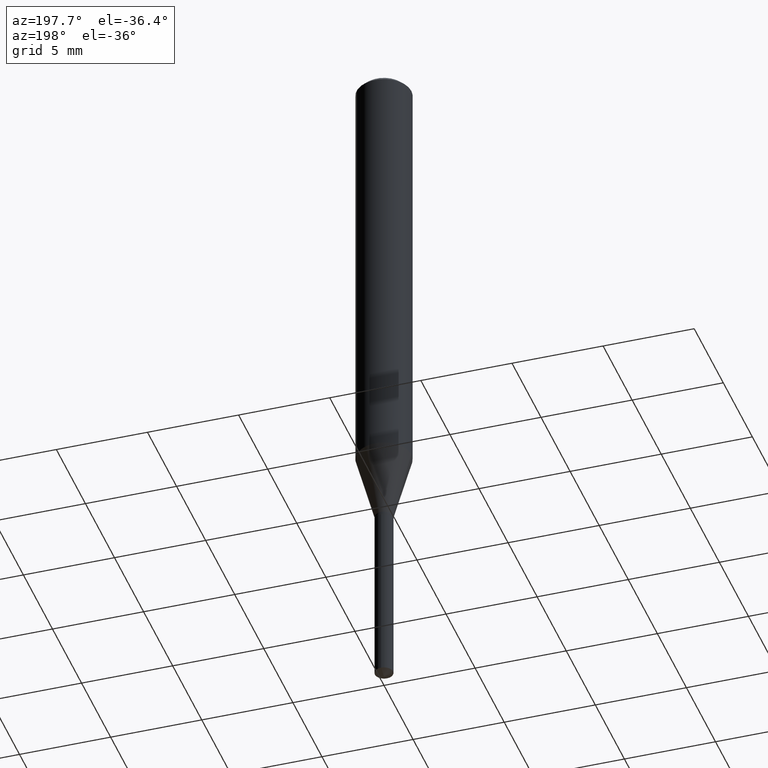
[diagram: clean part render]
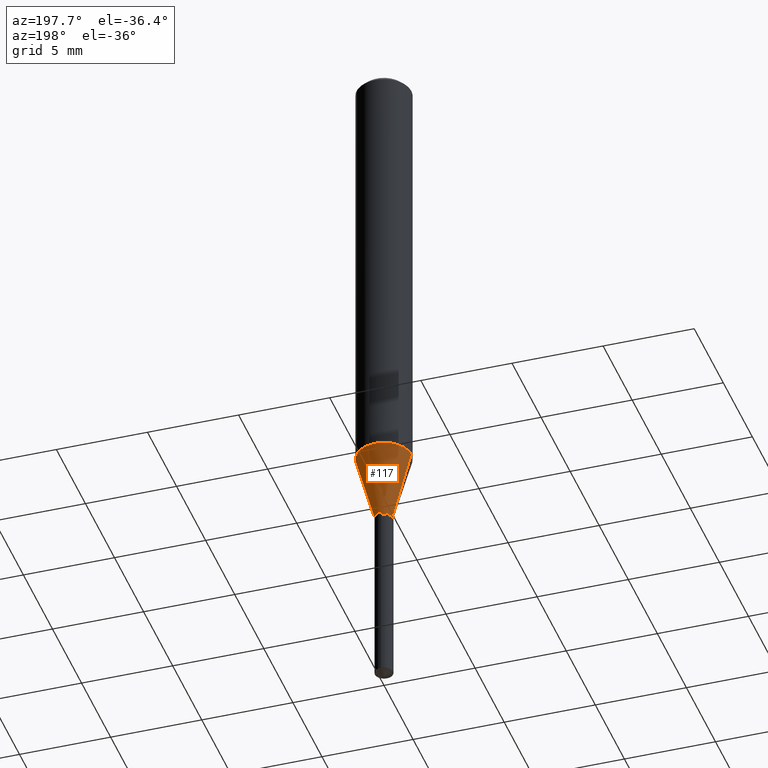
[diagram: same view with one face highlighted and labeled with its STEP entity id]
A machine part, auxiliary view. The second image highlights one B-rep face of the part: STEP entity #117.
In plain terms, the highlighted conical surface has half-angle 15 deg.
Its self-contained STEP definition (entity closure, byte-faithful):
#1 = LINE ( 'NONE', #167, #38 ) ;
#17 = CARTESIAN_POINT ( 'NONE',  ( 2.662137342413139764E-29, -3.800826585464648242E-15, -1.088600000000000012 ) ) ;
#21 = DIRECTION ( 'NONE',  ( -2.445468806185136597E-29, 3.491481338843145583E-15, 1.000000000000000000 ) ) ;
#38 = VECTOR ( 'NONE', #44, 39.37007874015748854 ) ;
#44 = DIRECTION ( 'NONE',  ( 0.2588190451025211281, 1.565188264969622954E-15, 0.9659258262890679791 ) ) ;
#45 = ORIENTED_EDGE ( 'NONE', *, *, #148, .T. ) ;
#51 = VERTEX_POINT ( 'NONE', #345 ) ;
#63 = DIRECTION ( 'NONE',  ( 1.000000000000000000, -6.982962677686258033E-15, 0.000000000000000000 ) ) ;
#77 = ORIENTED_EDGE ( 'NONE', *, *, #207, .T. ) ;
#96 = FACE_OUTER_BOUND ( 'NONE', #258, .T. ) ;
#117 = ADVANCED_FACE ( 'NONE', ( #96 ), #231, .T. ) ;
#148 = EDGE_CURVE ( 'NONE', #301, #51, #259, .T. ) ;
#167 = CARTESIAN_POINT ( 'NONE',  ( 0.01949999999999999997, -3.936994357679530254E-15, -1.088600000000000012 ) ) ;
#197 = CARTESIAN_POINT ( 'NONE',  ( -0.05905000000000010935, -2.865899343576267000E-15, -0.9409973905606506817 ) ) ;
#207 = EDGE_CURVE ( 'NONE', #51, #476, #351, .T. ) ;
#215 = DIRECTION ( 'NONE',  ( -2.445468806185136597E-29, 3.491481338843145583E-15, 1.000000000000000000 ) ) ;
#231 = CONICAL_SURFACE ( 'NONE', #477, 0.01949999999999999997, 0.2617993877991498519 ) ;
#252 = VECTOR ( 'NONE', #424, 39.37007874015748854 ) ;
#258 = EDGE_LOOP ( 'NONE', ( #45, #77, #340, #310 ) ) ;
#259 = CIRCLE ( 'NONE', #362, 0.01949999999999999997 ) ;
#262 = CIRCLE ( 'NONE', #426, 0.05905000000000010935 ) ;
#286 = DIRECTION ( 'NONE',  ( 1.000000000000000000, -6.982962677686258033E-15, 0.000000000000000000 ) ) ;
#292 = CARTESIAN_POINT ( 'NONE',  ( 2.301179765317683209E-29, -3.285474829042607282E-15, -0.9409973905606506817 ) ) ;
#294 = EDGE_CURVE ( 'NONE', #438, #476, #262, .T. ) ;
#301 = VERTEX_POINT ( 'NONE', #401 ) ;
#310 = ORIENTED_EDGE ( 'NONE', *, *, #420, .F. ) ;
#340 = ORIENTED_EDGE ( 'NONE', *, *, #294, .F. ) ;
#345 = CARTESIAN_POINT ( 'NONE',  ( -0.01949999999999999997, -3.671697751606305097E-15, -1.088600000000000012 ) ) ;
#351 = LINE ( 'NONE', #427, #252 ) ;
#362 = AXIS2_PLACEMENT_3D ( 'NONE', #17, #21, #286 ) ;
#393 = CARTESIAN_POINT ( 'NONE',  ( 2.662137342413139764E-29, -3.800826585464648242E-15, -1.088600000000000012 ) ) ;
#398 = DIRECTION ( 'NONE',  ( 1.000000000000000000, -6.982962677686267499E-15, 0.000000000000000000 ) ) ;
#401 = CARTESIAN_POINT ( 'NONE',  ( 0.01949999999999999997, -3.936994357679530254E-15, -1.088600000000000012 ) ) ;
#420 = EDGE_CURVE ( 'NONE', #301, #438, #1, .T. ) ;
#424 = DIRECTION ( 'NONE',  ( -0.2588190451025211281, 5.211531920934547886E-15, 0.9659258262890679791 ) ) ;
#426 = AXIS2_PLACEMENT_3D ( 'NONE', #292, #442, #398 ) ;
#427 = CARTESIAN_POINT ( 'NONE',  ( -0.01949999999999999997, -3.662270751991428189E-15, -1.088600000000000012 ) ) ;
#438 = VERTEX_POINT ( 'NONE', #449 ) ;
#442 = DIRECTION ( 'NONE',  ( -2.445468806185136597E-29, 3.491481338843145583E-15, 1.000000000000000000 ) ) ;
#449 = CARTESIAN_POINT ( 'NONE',  ( 0.05905000000000010935, -3.697818775159981807E-15, -0.9409973905606506817 ) ) ;
#476 = VERTEX_POINT ( 'NONE', #197 ) ;
#477 = AXIS2_PLACEMENT_3D ( 'NONE', #393, #215, #63 ) ;